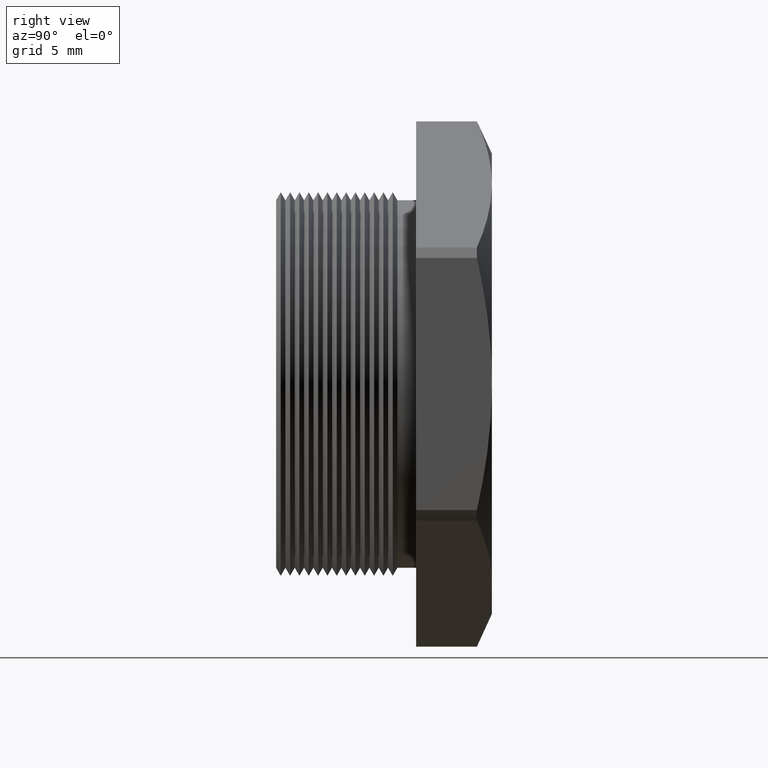
[diagram: clean part render]
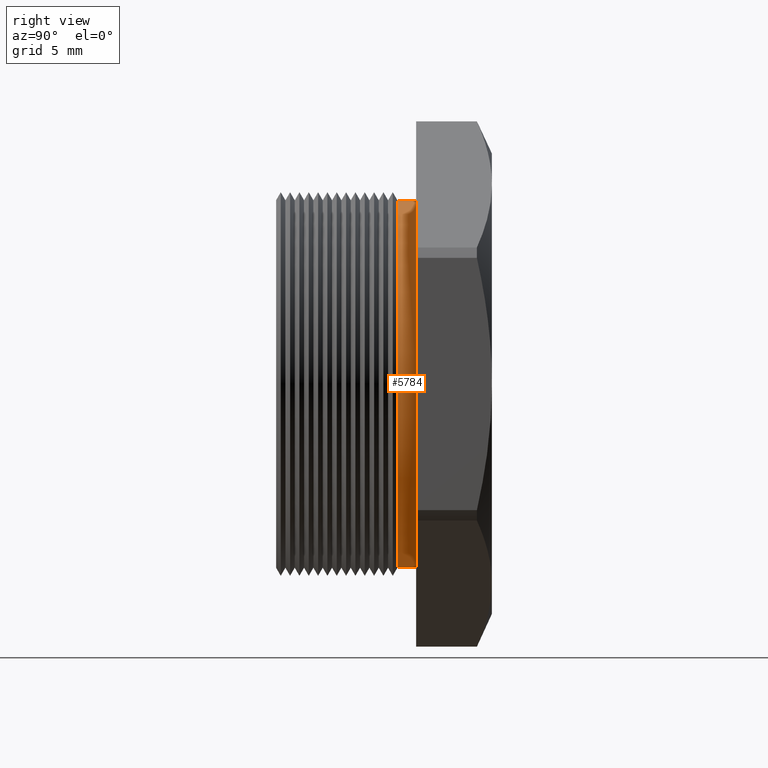
[diagram: same view with one face highlighted and labeled with its STEP entity id]
A machine part, right view. The second image highlights one B-rep face of the part: STEP entity #5784.
In plain terms, the highlighted cylindrical surface (partial cylindrical patch) has radius 8.001 mm, axis along (-0, -1, -0).
Its self-contained STEP definition (entity closure, byte-faithful):
#1276 = DIRECTION ( 'NONE',  ( 0.0000000000000000000, 0.0000000000000000000, -1.000000000000000000 ) ) ;
#1277 = DIRECTION ( 'NONE',  ( -0.0000000000000000000, -1.000000000000000000, -0.0000000000000000000 ) ) ;
#1278 = AXIS2_PLACEMENT_3D ( 'NONE', #1281, #1277, #1276 ) ;
#1279 = CYLINDRICAL_SURFACE ( 'NONE', #1278, 0.3150000000000000000 ) ;
#1281 = CARTESIAN_POINT ( 'NONE',  ( 0.0000000000000000000, 0.0000000000000000000, 0.0000000000000000000 ) ) ;
#1282 = FACE_OUTER_BOUND ( 'NONE', #5785, .T. ) ;
#1320 = CARTESIAN_POINT ( 'NONE',  ( 3.857637417314162700E-017, 0.2455072448100089100, 0.3150000000000000000 ) ) ;
#1321 = DIRECTION ( 'NONE',  ( 0.0000000000000000000, 0.0000000000000000000, -1.000000000000000000 ) ) ;
#1322 = DIRECTION ( 'NONE',  ( 0.0000000000000000000, -1.000000000000000000, 0.0000000000000000000 ) ) ;
#1323 = CARTESIAN_POINT ( 'NONE',  ( 0.0000000000000000000, 0.2455072448100089100, 0.0000000000000000000 ) ) ;
#1324 = AXIS2_PLACEMENT_3D ( 'NONE', #1323, #1322, #1321 ) ;
#1325 = CIRCLE ( 'NONE', #1324, 0.3150000000000000000 ) ;
#1337 = DIRECTION ( 'NONE',  ( -0.0000000000000000000, -1.000000000000000000, -0.0000000000000000000 ) ) ;
#1338 = VECTOR ( 'NONE', #1337, 39.37007874015748100 ) ;
#1339 = CARTESIAN_POINT ( 'NONE',  ( 0.0000000000000000000, 0.0000000000000000000, -0.3150000000000000000 ) ) ;
#1340 = LINE ( 'NONE', #1339, #1338 ) ;
#1365 = DIRECTION ( 'NONE',  ( -0.0000000000000000000, -1.000000000000000000, -0.0000000000000000000 ) ) ;
#1366 = VECTOR ( 'NONE', #1365, 39.37007874015748100 ) ;
#1367 = CARTESIAN_POINT ( 'NONE',  ( 3.857637417314162700E-017, 0.0000000000000000000, 0.3150000000000000000 ) ) ;
#1368 = LINE ( 'NONE', #1367, #1366 ) ;
#1462 = CARTESIAN_POINT ( 'NONE',  ( 3.857637417314162700E-017, 0.2775548905829479700, 0.3150000000000000000 ) ) ;
#1463 = CARTESIAN_POINT ( 'NONE',  ( 0.0000000000000000000, 0.2775548905829479700, -0.3150000000000000000 ) ) ;
#1464 = DIRECTION ( 'NONE',  ( 0.0000000000000000000, 0.0000000000000000000, -1.000000000000000000 ) ) ;
#1465 = DIRECTION ( 'NONE',  ( -0.0000000000000000000, -1.000000000000000000, -0.0000000000000000000 ) ) ;
#1466 = CARTESIAN_POINT ( 'NONE',  ( 0.0000000000000000000, 0.2775548905829479700, 0.0000000000000000000 ) ) ;
#1467 = AXIS2_PLACEMENT_3D ( 'NONE', #1466, #1465, #1464 ) ;
#1468 = CIRCLE ( 'NONE', #1467, 0.3150000000000000000 ) ;
#1729 = CARTESIAN_POINT ( 'NONE',  ( 0.0000000000000000000, 0.2455072448100089100, -0.3150000000000000000 ) ) ;
#5784 = ADVANCED_FACE ( 'NONE', ( #1282 ), #1279, .T. ) ;
#5785 = EDGE_LOOP ( 'NONE', ( #5786, #5841, #5807, #5808 ) ) ;
#5786 = ORIENTED_EDGE ( 'NONE', *, *, #5889, .T. ) ;
#5798 = EDGE_CURVE ( 'NONE', #6015, #5799, #1325, .T. ) ;
#5799 = VERTEX_POINT ( 'NONE', #1320 ) ;
#5807 = ORIENTED_EDGE ( 'NONE', *, *, #5798, .F. ) ;
#5808 = ORIENTED_EDGE ( 'NONE', *, *, #5824, .F. ) ;
#5824 = EDGE_CURVE ( 'NONE', #5890, #6015, #1340, .T. ) ;
#5841 = ORIENTED_EDGE ( 'NONE', *, *, #5842, .T. ) ;
#5842 = EDGE_CURVE ( 'NONE', #5891, #5799, #1368, .T. ) ;
#5889 = EDGE_CURVE ( 'NONE', #5890, #5891, #1468, .T. ) ;
#5890 = VERTEX_POINT ( 'NONE', #1463 ) ;
#5891 = VERTEX_POINT ( 'NONE', #1462 ) ;
#6015 = VERTEX_POINT ( 'NONE', #1729 ) ;